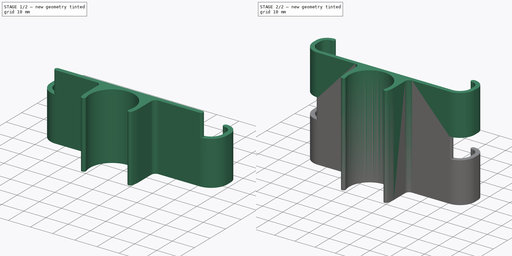
[diagram: build sequence overview — one tinted view per stage of 2, left to right]
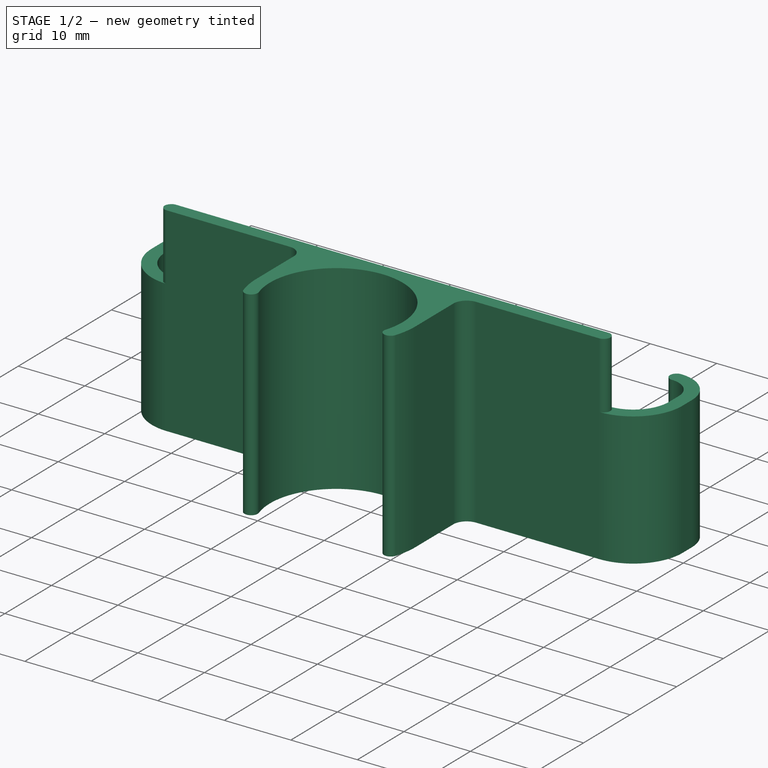
[diagram: stage 1 of 2 — iso view after this stage's code; geometry added in this stage tinted green]
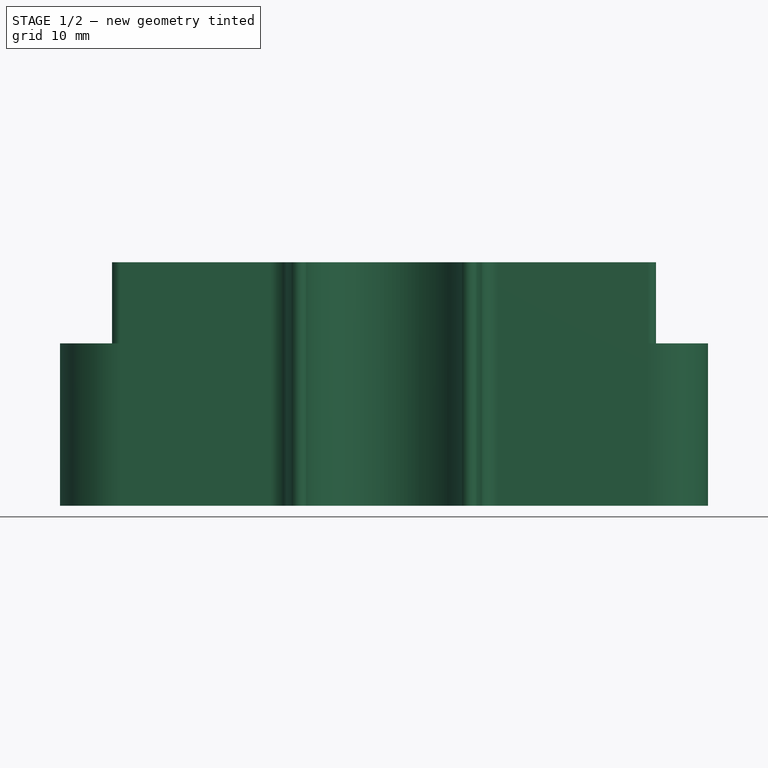
[diagram: stage 1 of 2 — front view after this stage's code; geometry added in this stage tinted green]
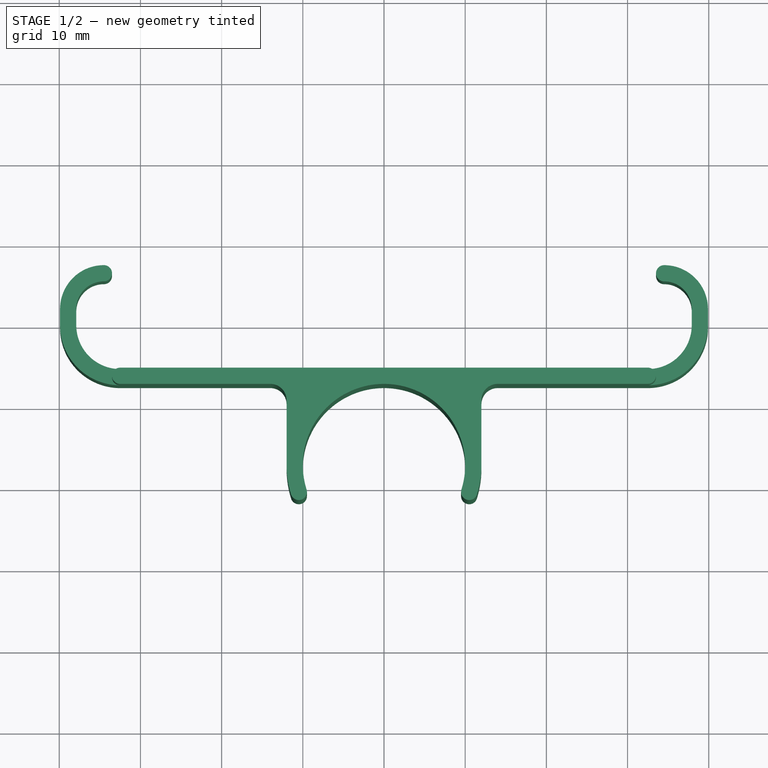
[diagram: stage 1 of 2 — top view after this stage's code; geometry added in this stage tinted green]
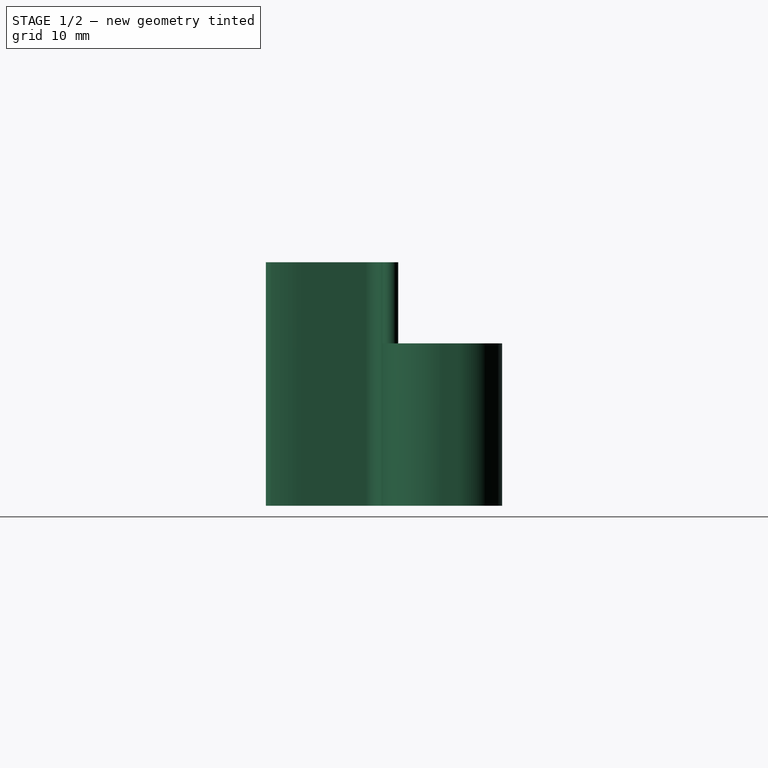
[diagram: stage 1 of 2 — right view after this stage's code; geometry added in this stage tinted green]
FCSTD DOCUMENT  (FreeCAD 0.19R24366 (Git))
Label: OPN2Caddy
License: Creative Commons Attribution-NonCommercial-ShareAlike
LicenseURL: http://creativecommons.org/licenses/by-nc-sa/4.0/
objects: Sketcher::SketchObject×4, PartDesign::Pad×3, Spreadsheet::Sheet×1, PartDesign::Body×1
note: 11 computed .brp shape members not serialized (recipe doc carries the construction recipe); baked Part::Feature solids carry a one-line shape summary decoded from their .brp

FEATURE [Sketcher::SketchObject] Sketch001  label="Template"
  FullyConstrained = true
  MapMode = 5
  Support = -> [XY_Plane]
  expr: Constraints[44] = <<Spreadsheet>>.WallThickness
  sketch-geometry (63):
    g0: ArcOfCircle CenterX=-34.5 CenterY=2 CenterZ=0 NormalX=0 NormalY=0 NormalZ=1 AngleXU=0 Radius=3.4 StartAngle=1.5708 EndAngle=3.14159
    g1: ArcOfCircle CenterX=-32.5 CenterY=1e-16 CenterZ=0 NormalX=0 NormalY=0 NormalZ=1 AngleXU=0 Radius=5.4 StartAngle=3.14159 EndAngle=4.71239
    g2: ArcOfCircle CenterX=32.5 CenterY=0 CenterZ=0 NormalX=0 NormalY=0 NormalZ=1 AngleXU=0 Radius=5.4 StartAngle=4.71239 EndAngle=6.28319
    g3: ArcOfCircle CenterX=34.5 CenterY=2 CenterZ=0 NormalX=0 NormalY=0 NormalZ=1 AngleXU=0 Radius=3.4 StartAngle=6.28319 EndAngle=7.85398
    g4: LineSegment StartX=34.5 StartY=5.4 StartZ=0 EndX=34.5 EndY=5 EndZ=0
    g5: LineSegment StartX=37.5 StartY=2 StartZ=0 EndX=37.9 EndY=2 EndZ=0
    g6: LineSegment StartX=37.5 StartY=-7.26864e-07 StartZ=0 EndX=37.9 EndY=-7.26864e-07 EndZ=0
    g7: LineSegment StartX=32.5 StartY=-5 StartZ=0 EndX=32.5 EndY=-5.4 EndZ=0
    g8: LineSegment StartX=-32.5 StartY=-5 StartZ=0 EndX=-32.5 EndY=-5.4 EndZ=0
    g9: LineSegment StartX=-37.5 StartY=-8.77959e-07 StartZ=0 EndX=-37.9 EndY=-8.77959e-07 EndZ=0
    g10: LineSegment StartX=-37.9 StartY=2 StartZ=0 EndX=-37.5 EndY=2 EndZ=0
    g11: LineSegment StartX=-34.5 StartY=5 StartZ=0 EndX=-34.5 EndY=5.4 EndZ=0
    g12: LineSegment StartX=-37.9 StartY=2 StartZ=0 EndX=-37.9 EndY=-8.77959e-07 EndZ=0
    g13: LineSegment StartX=-32.5 StartY=-5.4 StartZ=0 EndX=32.5 EndY=-5.4 EndZ=0
    g14: LineSegment StartX=37.9 StartY=-7.26864e-07 StartZ=0 EndX=37.9 EndY=2 EndZ=0
    g15: LineSegment StartX=-34.5 StartY=5.4 StartZ=0 EndX=-34.5 EndY=7.4 EndZ=0
    g16: LineSegment StartX=34.5 StartY=5.4 StartZ=0 EndX=34.5 EndY=7.4 EndZ=0
    g17: LineSegment StartX=37.9 StartY=2 StartZ=0 EndX=39.9 EndY=2 EndZ=0
    g18: LineSegment StartX=37.9 StartY=-7.26864e-07 StartZ=0 EndX=39.9 EndY=-7.26864e-07 EndZ=0
    g19: LineSegment StartX=32.5 StartY=-5.4 StartZ=0 EndX=32.5 EndY=-7.4 EndZ=0
    g20: LineSegment StartX=-32.5 StartY=-5.4 StartZ=0 EndX=-32.5 EndY=-7.4 EndZ=0
    g21: LineSegment StartX=-37.9 StartY=-8.77959e-07 StartZ=0 EndX=-39.9 EndY=-8.77959e-07 EndZ=0
    g22: LineSegment StartX=-37.9 StartY=2 StartZ=0 EndX=-39.9 EndY=2 EndZ=0
    g23: ArcOfCircle CenterX=-34.5 CenterY=2 CenterZ=0 NormalX=0 NormalY=0 NormalZ=1 AngleXU=0 Radius=5.4 StartAngle=1.5708 EndAngle=3.14159
    g24: ArcOfCircle CenterX=-32.5 CenterY=1e-16 CenterZ=0 NormalX=0 NormalY=0 NormalZ=1 AngleXU=0 Radius=7.4 StartAngle=3.14159 EndAngle=4.71239
    g25: ArcOfCircle CenterX=32.5 CenterY=0 CenterZ=0 NormalX=0 NormalY=0 NormalZ=1 AngleXU=0 Radius=7.4 StartAngle=4.71239 EndAngle=6.28319
    g26: ArcOfCircle CenterX=34.5 CenterY=2 CenterZ=0 NormalX=0 NormalY=0 NormalZ=1 AngleXU=0 Radius=5.4 StartAngle=6.28319 EndAngle=7.85398
    g27: LineSegment StartX=39.9 StartY=2 StartZ=0 EndX=39.9 EndY=-7.26864e-07 EndZ=0
    g28: LineSegment StartX=-39.9 StartY=2 StartZ=0 EndX=-39.9 EndY=-8.77959e-07 EndZ=0
    g29: ArcOfCircle CenterX=0 CenterY=-17.4 CenterZ=0 NormalX=0 NormalY=0 NormalZ=1 AngleXU=0 Radius=10 StartAngle=5.97775 EndAngle=9.73021
    g30: LineSegment StartX=0 StartY=7.4 StartZ=0 EndX=0 EndY=-17.4 EndZ=0
    g31: LineSegment StartX=-32.5 StartY=-7.4 StartZ=0 EndX=-14 EndY=-7.4 EndZ=0
    g32: LineSegment StartX=-14 StartY=-7.4 StartZ=0 EndX=14 EndY=-7.4 EndZ=0
    g33: LineSegment StartX=14 StartY=-7.4 StartZ=0 EndX=32.5 EndY=-7.4 EndZ=0
    g34: LineSegment StartX=-12 StartY=-17.4 StartZ=0 EndX=-12 EndY=-9.4 EndZ=0
    g35: LineSegment StartX=12 StartY=-17.4 StartZ=0 EndX=12 EndY=-9.4 EndZ=0
    g36: ArcOfCircle CenterX=-14 CenterY=-9.4 CenterZ=0 NormalX=0 NormalY=0 NormalZ=1 AngleXU=0 Radius=2 StartAngle=0 EndAngle=1.5708
    g37: ArcOfCircle CenterX=14 CenterY=-9.4 CenterZ=0 NormalX=0 NormalY=0 NormalZ=1 AngleXU=0 Radius=2 StartAngle=1.5708 EndAngle=3.14159
    g38: ArcOfCircle CenterX=34.5 CenterY=6.4 CenterZ=0 NormalX=0 NormalY=0 NormalZ=1 AngleXU=0 Radius=1 StartAngle=1.5708 EndAngle=4.71239
    g39: ArcOfCircle CenterX=-34.5 CenterY=6.4 CenterZ=0 NormalX=0 NormalY=0 NormalZ=1 AngleXU=0 Radius=1 StartAngle=4.71239 EndAngle=7.85398
    g40: LineSegment StartX=-9.53717 StartY=-20.4071 StartZ=0 EndX=0 EndY=-17.4 EndZ=0
    g41: LineSegment StartX=0 StartY=-17.4 StartZ=0 EndX=9.53717 EndY=-20.4071 EndZ=0
    g42: LineSegment StartX=-10 StartY=-17.4 StartZ=0 EndX=-10 EndY=-7.4 EndZ=0
    g43: LineSegment StartX=-12 StartY=-9.4 StartZ=0 EndX=-10 EndY=-9.4 EndZ=0
    g44: LineSegment StartX=-34.5 StartY=5 StartZ=0 EndX=34.5 EndY=5 EndZ=0
    g45: ArcOfCircle CenterX=34.5 CenterY=2 CenterZ=0 NormalX=0 NormalY=0 NormalZ=1 AngleXU=0 Radius=3 StartAngle=6.28319 EndAngle=7.85398
    g46: LineSegment StartX=37.5 StartY=2 StartZ=0 EndX=37.5 EndY=-7.26864e-07 EndZ=0
    g47: LineSegment StartX=-32.5 StartY=-5 StartZ=0 EndX=32.5 EndY=-5 EndZ=0
    g48: ArcOfCircle CenterX=32.5 CenterY=0 CenterZ=0 NormalX=0 NormalY=0 NormalZ=1 AngleXU=0 Radius=5 StartAngle=4.71239 EndAngle=6.28319
    g49: ArcOfCircle CenterX=-32.5 CenterY=1e-16 CenterZ=0 NormalX=0 NormalY=0 NormalZ=1 AngleXU=0 Radius=5 StartAngle=3.14159 EndAngle=4.71239
    g50: LineSegment StartX=-37.5 StartY=-8.77959e-07 StartZ=0 EndX=-37.5 EndY=2 EndZ=0
    g51: ArcOfCircle CenterX=-34.5 CenterY=2 CenterZ=0 NormalX=0 NormalY=0 NormalZ=1 AngleXU=0 Radius=3 StartAngle=1.5708 EndAngle=3.14159
    g52: LineSegment StartX=-34.5 StartY=5 StartZ=0 EndX=-37.5 EndY=5 EndZ=0
    g53: LineSegment StartX=-37.5 StartY=5 StartZ=0 EndX=-37.5 EndY=2 EndZ=0
    g54: LineSegment StartX=37.5 StartY=-7.26864e-07 StartZ=0 EndX=37.5 EndY=-5 EndZ=0
    g55: LineSegment StartX=37.5 StartY=-5 StartZ=0 EndX=32.5 EndY=-5 EndZ=0
    g56: ArcOfCircle CenterX=-32.5 CenterY=-6.4 CenterZ=0 NormalX=0 NormalY=0 NormalZ=1 AngleXU=0 Radius=1 StartAngle=1.5708 EndAngle=4.71239
    g57: ArcOfCircle CenterX=32.5 CenterY=-6.4 CenterZ=0 NormalX=0 NormalY=0 NormalZ=1 AngleXU=0 Radius=1 StartAngle=4.71239 EndAngle=7.85398
    g58: LineSegment StartX=-12 StartY=-17.4 StartZ=0 EndX=12 EndY=-17.4 EndZ=0
    g59: ArcOfCircle CenterX=0 CenterY=-17.4 CenterZ=0 NormalX=0 NormalY=0 NormalZ=1 AngleXU=0 Radius=12 StartAngle=3.14159 EndAngle=3.44703
    g60: ArcOfCircle CenterX=0 CenterY=-17.4 CenterZ=0 NormalX=0 NormalY=0 NormalZ=1 AngleXU=0 Radius=12 StartAngle=5.97775 EndAngle=6.28319
    g61: ArcOfCircle CenterX=-10.4909 CenterY=-20.7078 CenterZ=0 NormalX=0 NormalY=0 NormalZ=1 AngleXU=0 Radius=1 StartAngle=3.44703 EndAngle=6.58862
    g62: ArcOfCircle CenterX=10.4909 CenterY=-20.7078 CenterZ=0 NormalX=0 NormalY=0 NormalZ=1 AngleXU=0 Radius=1 StartAngle=2.83616 EndAngle=5.97775
  constraints (168):
    c: Coincident(g4,g3)
    c: Vertical(g4)
    c: Coincident(g5,g3)
    c: Horizontal(g5)
    c: Coincident(g6,g2)
    c: Horizontal(g6)
    c: Coincident(g7,g2)
    c: Vertical(g7)
    c: Coincident(g8,g1)
    c: Coincident(g9,g1)
    c: Coincident(g10,g0)
    c: Horizontal(g10)
    c: Coincident(g11,g0)
    c: Vertical(g11)
    c: Horizontal(g9)
    c: Equal(g5,g6)
    c: Equal(g7,g8)
    c: Equal(g9,g10)
    c: Distance(g11) = 0.4
    c: Coincident(g12,g0)
    c: Coincident(g12,g1)
    c: Coincident(g13,g1)
    c: Coincident(g13,g2)
    c: Coincident(g14,g2)
    c: Coincident(g14,g3)
    c: Coincident(g15,g0)
    c: Vertical(g15)
    c: Coincident(g16,g3)
    c: Vertical(g16)
    c: Coincident(g17,g3)
    c: Horizontal(g17)
    c: Coincident(g18,g2)
    c: Horizontal(g18)
    c: Coincident(g19,g2)
    c: Vertical(g19)
    c: Coincident(g20,g1)
    c: Vertical(g20)
    c: Coincident(g21,g1)
    c: Horizontal(g21)
    c: Coincident(g22,g0)
    c: Horizontal(g22)
    c: Equal(g22,g21)
    c: Equal(g20,g19)
    c: Equal(g18,g17)
    c: Distance(g15) = 2
    c: Coincident(g23,g0)
    c: Coincident(g23,g15)
    c: Coincident(g23,g22)
    c: Coincident(g24,g1)
    c: Coincident(g24,g21)
    c: Coincident(g24,g20)
    c: Coincident(g25,g2)
    c: Coincident(g25,g19)
    c: Coincident(g25,g18)
    c: Coincident(g26,g3)
    c: Coincident(g26,g16)
    c: Coincident(g26,g17)
    c: Coincident(g27,g26)
    c: Coincident(g27,g25)
    c: Coincident(g28,g23)
    c: Coincident(g28,g24)
    c: Coincident(g30,g29)
    c: Vertical(g30)
    c: Symmetric(g15,g16,g30)
    c: Coincident(g31,g24)
    c: Horizontal(g31)
    c: Coincident(g32,g31)
    c: Horizontal(g32)
    c: Tangent(g32,g29)
    c: Coincident(g33,g32)
    c: Coincident(g33,g25)
    c: Radius(g29) = 10
    c: Vertical(g34)
    c: Vertical(g35)
    c: Tangent(g35,g37) = 1.5708
    c: Tangent(g37,g33) = 1.5708
    c: Tangent(g36,g31) = 1.5708
    c: Tangent(g36,g34) = -1.5708
    c: Equal(g37,g36)
    c: Radius(g36) = 2
    c: PointOnObject(g38,g16)
    c: Coincident(g38,g26)
    c: Coincident(g38,g3)
    c: PointOnObject(g39,g15)
    c: Coincident(g39,g23)
    c: Coincident(g39,g0)
    c: Coincident(g40,g29)
    c: Coincident(g40,g29)
    c: Coincident(g41,g29)
    c: Coincident(g41,g29)
    c: Angle(g40,g41) = 2.53073
    c: PointOnObject(g42,g32)
    c: Vertical(g42)
    c: Coincident(g43,g34)
    c: PointOnObject(g43,g42)
    c: Horizontal(g43)
    c: Equal(g43,g20)
    c: Horizontal(g13)
    c: Coincident(g44,g11)
    c: Coincident(g44,g4)
    c: Coincident(g46,g5)
    c: Coincident(g46,g6)
    c: Tangent(g46,g45)
    c: Coincident(g45,g4)
    c: Coincident(g45,g5)
    c: Coincident(g47,g8)
    c: Coincident(g47,g7)
    c: Coincident(g48,g7)
    c: Coincident(g48,g6)
    c: Coincident(g49,g9)
    c: Coincident(g49,g8)
    c: Coincident(g50,g9)
    c: Coincident(g50,g10)
    c: Coincident(g51,g11)
    c: Coincident(g51,g10)
    c: Horizontal(g44)
    c: Horizontal(g47)
    c: Vertical(g50)
    c: Vertical(g46)
    c: Tangent(g45,g44)
    c: Equal(g7,g6)
    c: Equal(g8,g9)
    c: Equal(g10,g11)
    c: Equal(g51,g45)
    c: Equal(g48,g49)
    c: Radius(g49) = 5
    c: Radius(g51) = 3
    c: Coincident(g52,g11)
    c: Horizontal(g52)
    c: Coincident(g53,g52)
    c: Coincident(g53,g10)
    c: Vertical(g53)
    c: Tangent(g53,g51)
    c: Coincident(g54,g6)
    c: Coincident(g55,g54)
    c: Coincident(g55,g7)
    c: Tangent(g55,g48)
    c: Symmetric(g54,g52,g-1)  '__ANCHOR__'
    c: Tangent(g49,g47)
    c: DistanceY(g8,g52) = 10
    c: DistanceX(g52,g5) = 75
    c: Coincident(g2,g48)
    c: Coincident(g3,g45)
    c: Coincident(g0,g51)
    c: Coincident(g1,g49)
    c: Horizontal(g55)
    c: PointOnObject(g56,g20)
    c: Coincident(g56,g1)
    c: Coincident(g56,g24)
    c: PointOnObject(g57,g19)
    c: Coincident(g57,g2)
    c: Coincident(g57,g25)
    c: Coincident(g58,g34)
    c: Coincident(g58,g35)
    c: Horizontal(g58)
    c: Tangent(g42,g29) = 1.5708
    c: PointOnObject(g29,g58)
    c: Coincident(g59,g29)
    c: Coincident(g59,g34)
    c: Coincident(g60,g29)
    c: Coincident(g60,g35)
    c: PointOnObject(g59,g40)
    c: Symmetric(g29,g29,g-2)
    c: Coincident(g61,g59)
    c: Tangent(g61,g29) = 1.5708
    c: Symmetric(g60,g59,g-2)
    c: Coincident(g62,g29)
    c: Tangent(g60,g62) = -1.5708
FEATURE [Spreadsheet::Sheet] Spreadsheet
  cells = B2=WallThickness; C2(WallThickness)==2mm
FEATURE [Sketcher::SketchObject] Sketch
  ExternalGeometry = -> [Sketch001]
  FullyConstrained = true
  MapMode = 5
  Support = -> [XY_Plane]
  sketch-geometry (26):
    g0: ArcOfCircle CenterX=-34.5 CenterY=2 CenterZ=0 NormalX=0 NormalY=0 NormalZ=1 AngleXU=0 Radius=3.4 StartAngle=1.5708 EndAngle=3.14159
    g1: ArcOfCircle CenterX=-34.5 CenterY=6.4 CenterZ=0 NormalX=0 NormalY=0 NormalZ=1 AngleXU=0 Radius=1 StartAngle=4.7124 EndAngle=7.85397
    g2: ArcOfCircle CenterX=-34.5 CenterY=2 CenterZ=0 NormalX=0 NormalY=0 NormalZ=1 AngleXU=0 Radius=5.4 StartAngle=1.5708 EndAngle=3.14159
    g3: ArcOfCircle CenterX=-32.5 CenterY=1e-16 CenterZ=0 NormalX=0 NormalY=0 NormalZ=1 AngleXU=0 Radius=5.4 StartAngle=3.14159 EndAngle=4.71239
    g4: ArcOfCircle CenterX=-32.5 CenterY=4.8598e-12 CenterZ=0 NormalX=0 NormalY=0 NormalZ=1 AngleXU=0 Radius=7.4 StartAngle=3.14159 EndAngle=4.71239
    g5: ArcOfCircle CenterX=-14 CenterY=-9.4 CenterZ=0 NormalX=0 NormalY=0 NormalZ=1 AngleXU=0 Radius=2 StartAngle=3.696e-13 EndAngle=1.5708
    g6: ArcOfCircle CenterX=2e-16 CenterY=-17.4 CenterZ=0 NormalX=0 NormalY=0 NormalZ=1 AngleXU=0 Radius=10 StartAngle=5.97775 EndAngle=9.73021
    g7: ArcOfCircle CenterX=-10.4909 CenterY=-20.7078 CenterZ=0 NormalX=0 NormalY=0 NormalZ=1 AngleXU=0 Radius=1 StartAngle=3.44703 EndAngle=6.58862
    g8: ArcOfCircle CenterX=-7e-16 CenterY=-17.4 CenterZ=0 NormalX=0 NormalY=0 NormalZ=1 AngleXU=0 Radius=12 StartAngle=3.14159 EndAngle=3.44703
    g9: ArcOfCircle CenterX=10.4909 CenterY=-20.7078 CenterZ=0 NormalX=0 NormalY=0 NormalZ=1 AngleXU=0 Radius=1 StartAngle=2.83617 EndAngle=5.97774
    g10: ArcOfCircle CenterX=7e-16 CenterY=-17.4 CenterZ=0 NormalX=0 NormalY=0 NormalZ=1 AngleXU=0 Radius=12 StartAngle=5.97775 EndAngle=6.28319
    g11: ArcOfCircle CenterX=14 CenterY=-9.4 CenterZ=0 NormalX=0 NormalY=0 NormalZ=1 AngleXU=0 Radius=2 StartAngle=1.5708 EndAngle=3.14159
    g12: ArcOfCircle CenterX=32.5 CenterY=3e-16 CenterZ=0 NormalX=0 NormalY=0 NormalZ=1 AngleXU=0 Radius=5.4 StartAngle=4.71239 EndAngle=6.28319
    g13: ArcOfCircle CenterX=32.5 CenterY=-2e-16 CenterZ=0 NormalX=0 NormalY=0 NormalZ=1 AngleXU=0 Radius=7.4 StartAngle=4.71239 EndAngle=6.28319
    g14: ArcOfCircle CenterX=34.5 CenterY=2 CenterZ=0 NormalX=0 NormalY=0 NormalZ=1 AngleXU=0 Radius=3.4 StartAngle=6.28319 EndAngle=7.85398
    g15: ArcOfCircle CenterX=34.5 CenterY=2 CenterZ=0 NormalX=0 NormalY=0 NormalZ=1 AngleXU=0 Radius=5.4 StartAngle=6.28319 EndAngle=7.85398
    g16: ArcOfCircle CenterX=34.5 CenterY=6.4 CenterZ=0 NormalX=0 NormalY=0 NormalZ=1 AngleXU=0 Radius=1 StartAngle=1.5708 EndAngle=4.71239
    g17: LineSegment StartX=-32.5 StartY=-5.4 StartZ=0 EndX=32.5 EndY=-5.4 EndZ=0
    g18: LineSegment StartX=37.9 StartY=2 StartZ=0 EndX=37.9 EndY=-7.26864e-07 EndZ=0
    g19: LineSegment StartX=39.9 StartY=2 StartZ=0 EndX=39.9 EndY=-7.26864e-07 EndZ=0
    g20: LineSegment StartX=32.5 StartY=-7.4 StartZ=0 EndX=14 EndY=-7.4 EndZ=0
    g21: LineSegment StartX=12 StartY=-9.4 StartZ=0 EndX=12 EndY=-17.4 EndZ=0
    g22: LineSegment StartX=-12 StartY=-17.4 StartZ=0 EndX=-12 EndY=-9.4 EndZ=0
    g23: LineSegment StartX=-14 StartY=-7.4 StartZ=0 EndX=-32.5 EndY=-7.4 EndZ=0
    g24: LineSegment StartX=-39.9 StartY=-8.77959e-07 StartZ=0 EndX=-39.9 EndY=2 EndZ=0
    g25: LineSegment StartX=-37.9 StartY=-8.77959e-07 StartZ=0 EndX=-37.9 EndY=2 EndZ=0
  constraints (69):
    c: Coincident(g0,g-4)
    c: Coincident(g0,g-4)
    c: Coincident(g1,g-5)
    c: Coincident(g1,g0)
    c: Coincident(g2,g1)
    c: Coincident(g2,g-5)
    c: Coincident(g3,g-7)
    c: Coincident(g3,g-7)
    c: Coincident(g4,g-6)
    c: Coincident(g4,g-6)
    c: Coincident(g5,g-8)
    c: Coincident(g5,g-8)
    c: Coincident(g6,g-11)
    c: Coincident(g6,g-12)
    c: Coincident(g7,g-10)
    c: Coincident(g7,g6)
    c: Coincident(g8,g-9)
    c: Coincident(g8,g7)
    c: Coincident(g9,g6)
    c: Coincident(g9,g-19)
    c: Coincident(g10,g-19)
    c: Coincident(g10,g9)
    c: Coincident(g11,g-13)
    c: Coincident(g11,g-13)
    c: Coincident(g12,g-15)
    c: Coincident(g12,g-15)
    c: Coincident(g13,g-14)
    c: Coincident(g13,g-14)
    c: Coincident(g14,g-18)
    c: Coincident(g14,g-16)
    c: Coincident(g15,g-18)
    c: Coincident(g15,g-17)
    c: Coincident(g16,g14)
    c: Coincident(g16,g15)
    c: Equal(g1,g-3)
    c: Equal(g2,g-5)
    c: Equal(g0,g-4)
    c: Equal(g3,g-7)
    c: Equal(g-6,g4)
    c: Equal(g-8,g5)
    c: Equal(g-9,g8)
    c: Equal(g-10,g7)
    c: Equal(g-11,g6)
    c: Equal(g-12,g9)
    c: Equal(g-19,g10)
    c: Equal(g11,g-13)
    c: Equal(g-14,g13)
    c: Equal(g-15,g12)
    c: Equal(g14,g-16)
    c: Equal(g-17,g15)
    c: Equal(g16,g-18)
    c: Coincident(g17,g3)
    c: Coincident(g17,g12)
    c: Coincident(g18,g14)
    c: Coincident(g18,g12)
    c: Coincident(g19,g15)
    c: Coincident(g19,g13)
    c: Coincident(g20,g13)
    c: Coincident(g20,g11)
    c: Coincident(g21,g11)
    c: Coincident(g21,g10)
    c: Coincident(g22,g8)
    c: Coincident(g22,g5)
    c: Coincident(g23,g5)
    c: Coincident(g23,g4)
    c: Coincident(g24,g4)
    c: Coincident(g24,g2)
    c: Coincident(g25,g3)
    c: Coincident(g25,g0)
FEATURE [PartDesign::Pad] Pad
  Direction = (1,1,1)
  Length = 20
  Length2 = 100
  Profile = -> Sketch
  Type = 0
FEATURE [Sketcher::SketchObject] Sketch002
  AttachmentOffset = pos=(0,0,20) rot=(0,0,1;0rad)
  ExternalGeometry = -> [Sketch001]
  FullyConstrained = true
  MapMode = 5
  Placement = pos=(0,0,20) rot=(0,0,1;0rad)
  Support = -> [XY_Plane]
  expr: .AttachmentOffset.Base.z = <<Sketch>>.AttachmentOffset.Base.z + <<Pad>>.Length
  sketch-geometry (14):
    g0: ArcOfCircle CenterX=-14 CenterY=-9.4 CenterZ=0 NormalX=0 NormalY=0 NormalZ=1 AngleXU=0 Radius=2 StartAngle=3.696e-13 EndAngle=1.5708
    g1: ArcOfCircle CenterX=2e-16 CenterY=-17.4 CenterZ=0 NormalX=0 NormalY=0 NormalZ=1 AngleXU=0 Radius=10 StartAngle=5.97775 EndAngle=9.73021
    g2: ArcOfCircle CenterX=-10.4909 CenterY=-20.7078 CenterZ=0 NormalX=0 NormalY=0 NormalZ=1 AngleXU=0 Radius=1 StartAngle=3.44703 EndAngle=6.58862
    g3: ArcOfCircle CenterX=-7e-16 CenterY=-17.4 CenterZ=0 NormalX=0 NormalY=0 NormalZ=1 AngleXU=0 Radius=12 StartAngle=3.14159 EndAngle=3.44703
    g4: ArcOfCircle CenterX=10.4909 CenterY=-20.7078 CenterZ=0 NormalX=0 NormalY=0 NormalZ=1 AngleXU=0 Radius=1 StartAngle=2.83617 EndAngle=5.97774
    g5: ArcOfCircle CenterX=7e-16 CenterY=-17.4 CenterZ=0 NormalX=0 NormalY=0 NormalZ=1 AngleXU=0 Radius=12 StartAngle=5.97775 EndAngle=6.28319
    g6: ArcOfCircle CenterX=14 CenterY=-9.4 CenterZ=0 NormalX=0 NormalY=0 NormalZ=1 AngleXU=0 Radius=2 StartAngle=1.5708 EndAngle=3.14159
    g7: LineSegment StartX=-32.5 StartY=-5.4 StartZ=0 EndX=32.5 EndY=-5.4 EndZ=0
    g8: LineSegment StartX=32.5 StartY=-7.4 StartZ=0 EndX=14 EndY=-7.4 EndZ=0
    g9: LineSegment StartX=12 StartY=-9.4 StartZ=0 EndX=12 EndY=-17.4 EndZ=0
    g10: LineSegment StartX=-12 StartY=-17.4 StartZ=0 EndX=-12 EndY=-9.4 EndZ=0
    g11: LineSegment StartX=-14 StartY=-7.4 StartZ=0 EndX=-32.5 EndY=-7.4 EndZ=0
    g12: ArcOfCircle CenterX=-32.5 CenterY=-6.4 CenterZ=0 NormalX=0 NormalY=0 NormalZ=1 AngleXU=0 Radius=1 StartAngle=1.5708 EndAngle=4.71238
    g13: ArcOfCircle CenterX=32.5 CenterY=-6.4 CenterZ=0 NormalX=0 NormalY=0 NormalZ=1 AngleXU=0 Radius=1 StartAngle=4.7124 EndAngle=7.85397
  constraints (37):
    c: Coincident(g0,g-3)
    c: Coincident(g0,g-3)
    c: Coincident(g1,g-6)
    c: Coincident(g1,g-7)
    c: Coincident(g2,g-5)
    c: Coincident(g2,g1)
    c: Coincident(g3,g-4)
    c: Coincident(g3,g2)
    c: Coincident(g4,g1)
    c: Coincident(g4,g-9)
    c: Coincident(g5,g-9)
    c: Coincident(g5,g4)
    c: Coincident(g6,g-8)
    c: Coincident(g6,g-8)
    c: Equal(g-3,g0)
    c: Equal(g-4,g3)
    c: Equal(g-5,g2)
    c: Equal(g-6,g1)
    c: Equal(g-7,g4)
    c: Equal(g-9,g5)
    c: Equal(g6,g-8)
    c: Coincident(g8,g6)
    c: Coincident(g9,g6)
    c: Coincident(g9,g5)
    c: Coincident(g10,g3)
    c: Coincident(g10,g0)
    c: Coincident(g11,g0)
    c: Coincident(g7,g-11)
    c: Coincident(g8,g-11)
    c: Coincident(g7,g-10)
    c: Coincident(g11,g-10)
    c: Coincident(g12,g7)
    c: Coincident(g12,g11)
    c: Coincident(g13,g7)
    c: Coincident(g13,g8)
    c: Equal(g13,g-11)
    c: Equal(g12,g-10)
FEATURE [Sketcher::SketchObject] Sketch003
  AttachmentOffset = pos=(0,0,30) rot=(0,0,1;0rad)
  ExternalGeometry = -> [Sketch001]
  FullyConstrained = true
  MapMode = 5
  Placement = pos=(0,0,30) rot=(0,0,1;0rad)
  Support = -> [XY_Plane]
  expr: .AttachmentOffset.Base.z = <<Sketch002>>.AttachmentOffset.Base.z + <<Pad001>>.Length
  sketch-geometry (26):
    g0: ArcOfCircle CenterX=-34.5 CenterY=2 CenterZ=0 NormalX=0 NormalY=0 NormalZ=1 AngleXU=0 Radius=3.4 StartAngle=1.5708 EndAngle=3.14159
    g1: ArcOfCircle CenterX=-34.5 CenterY=6.4 CenterZ=0 NormalX=0 NormalY=0 NormalZ=1 AngleXU=0 Radius=1 StartAngle=4.7124 EndAngle=7.85397
    g2: ArcOfCircle CenterX=-34.5 CenterY=2 CenterZ=0 NormalX=0 NormalY=0 NormalZ=1 AngleXU=0 Radius=5.4 StartAngle=1.5708 EndAngle=3.14159
    g3: ArcOfCircle CenterX=-32.5 CenterY=1e-16 CenterZ=0 NormalX=0 NormalY=0 NormalZ=1 AngleXU=0 Radius=5.4 StartAngle=3.14159 EndAngle=4.71239
    g4: ArcOfCircle CenterX=-32.5 CenterY=4.8598e-12 CenterZ=0 NormalX=0 NormalY=0 NormalZ=1 AngleXU=0 Radius=7.4 StartAngle=3.14159 EndAngle=4.71239
    g5: ArcOfCircle CenterX=-14 CenterY=-9.4 CenterZ=0 NormalX=0 NormalY=0 NormalZ=1 AngleXU=0 Radius=2 StartAngle=3.696e-13 EndAngle=1.5708
    g6: ArcOfCircle CenterX=2e-16 CenterY=-17.4 CenterZ=0 NormalX=0 NormalY=0 NormalZ=1 AngleXU=0 Radius=10 StartAngle=5.97775 EndAngle=9.73021
    g7: ArcOfCircle CenterX=-10.4909 CenterY=-20.7078 CenterZ=0 NormalX=0 NormalY=0 NormalZ=1 AngleXU=0 Radius=1 StartAngle=3.44703 EndAngle=6.58862
    g8: ArcOfCircle CenterX=-7e-16 CenterY=-17.4 CenterZ=0 NormalX=0 NormalY=0 NormalZ=1 AngleXU=0 Radius=12 StartAngle=3.14159 EndAngle=3.44703
    g9: ArcOfCircle CenterX=10.4909 CenterY=-20.7078 CenterZ=0 NormalX=0 NormalY=0 NormalZ=1 AngleXU=0 Radius=1 StartAngle=2.83617 EndAngle=5.97774
    g10: ArcOfCircle CenterX=7e-16 CenterY=-17.4 CenterZ=0 NormalX=0 NormalY=0 NormalZ=1 AngleXU=0 Radius=12 StartAngle=5.97775 EndAngle=6.28319
    g11: ArcOfCircle CenterX=14 CenterY=-9.4 CenterZ=0 NormalX=0 NormalY=0 NormalZ=1 AngleXU=0 Radius=2 StartAngle=1.5708 EndAngle=3.14159
    g12: ArcOfCircle CenterX=32.5 CenterY=3e-16 CenterZ=0 NormalX=0 NormalY=0 NormalZ=1 AngleXU=0 Radius=5.4 StartAngle=4.71239 EndAngle=6.28319
    g13: ArcOfCircle CenterX=32.5 CenterY=-2e-16 CenterZ=0 NormalX=0 NormalY=0 NormalZ=1 AngleXU=0 Radius=7.4 StartAngle=4.71239 EndAngle=6.28319
    g14: ArcOfCircle CenterX=34.5 CenterY=2 CenterZ=0 NormalX=0 NormalY=0 NormalZ=1 AngleXU=0 Radius=3.4 StartAngle=6.28319 EndAngle=7.85398
    g15: ArcOfCircle CenterX=34.5 CenterY=2 CenterZ=0 NormalX=0 NormalY=0 NormalZ=1 AngleXU=0 Radius=5.4 StartAngle=6.28319 EndAngle=7.85398
    g16: ArcOfCircle CenterX=34.5 CenterY=6.4 CenterZ=0 NormalX=0 NormalY=0 NormalZ=1 AngleXU=0 Radius=1 StartAngle=1.5708 EndAngle=4.71239
    g17: LineSegment StartX=-32.5 StartY=-5.4 StartZ=0 EndX=32.5 EndY=-5.4 EndZ=0
    g18: LineSegment StartX=37.9 StartY=2 StartZ=0 EndX=37.9 EndY=-7.26864e-07 EndZ=0
    g19: LineSegment StartX=39.9 StartY=2 StartZ=0 EndX=39.9 EndY=-7.26864e-07 EndZ=0
    g20: LineSegment StartX=32.5 StartY=-7.4 StartZ=0 EndX=14 EndY=-7.4 EndZ=0
    g21: LineSegment StartX=12 StartY=-9.4 StartZ=0 EndX=12 EndY=-17.4 EndZ=0
    g22: LineSegment StartX=-12 StartY=-17.4 StartZ=0 EndX=-12 EndY=-9.4 EndZ=0
    g23: LineSegment StartX=-14 StartY=-7.4 StartZ=0 EndX=-32.5 EndY=-7.4 EndZ=0
    g24: LineSegment StartX=-39.9 StartY=-8.77959e-07 StartZ=0 EndX=-39.9 EndY=2 EndZ=0
    g25: LineSegment StartX=-37.9 StartY=-8.77959e-07 StartZ=0 EndX=-37.9 EndY=2 EndZ=0
  constraints (69):
    c: Coincident(g0,g-4)
    c: Coincident(g0,g-4)
    c: Coincident(g1,g-5)
    c: Coincident(g1,g0)
    c: Coincident(g2,g1)
    c: Coincident(g2,g-5)
    c: Coincident(g3,g-7)
    c: Coincident(g3,g-7)
    c: Coincident(g4,g-6)
    c: Coincident(g4,g-6)
    c: Coincident(g5,g-8)
    c: Coincident(g5,g-8)
    c: Coincident(g6,g-11)
    c: Coincident(g6,g-12)
    c: Coincident(g7,g-10)
    c: Coincident(g7,g6)
    c: Coincident(g8,g-9)
    c: Coincident(g8,g7)
    c: Coincident(g9,g6)
    c: Coincident(g9,g-19)
    c: Coincident(g10,g-19)
    c: Coincident(g10,g9)
    c: Coincident(g11,g-13)
    c: Coincident(g11,g-13)
    c: Coincident(g12,g-15)
    c: Coincident(g12,g-15)
    c: Coincident(g13,g-14)
    c: Coincident(g13,g-14)
    c: Coincident(g14,g-18)
    c: Coincident(g14,g-16)
    c: Coincident(g15,g-18)
    c: Coincident(g15,g-17)
    c: Coincident(g16,g14)
    c: Coincident(g16,g15)
    c: Equal(g1,g-3)
    c: Equal(g2,g-5)
    c: Equal(g0,g-4)
    c: Equal(g3,g-7)
    c: Equal(g-6,g4)
    c: Equal(g-8,g5)
    c: Equal(g-9,g8)
    c: Equal(g-10,g7)
    c: Equal(g-11,g6)
    c: Equal(g-12,g9)
    c: Equal(g-19,g10)
    c: Equal(g11,g-13)
    c: Equal(g-14,g13)
    c: Equal(g-15,g12)
    c: Equal(g14,g-16)
    c: Equal(g-17,g15)
    c: Equal(g16,g-18)
    c: Coincident(g17,g3)
    c: Coincident(g17,g12)
    c: Coincident(g18,g14)
    c: Coincident(g18,g12)
    c: Coincident(g19,g15)
    c: Coincident(g19,g13)
    c: Coincident(g20,g13)
    c: Coincident(g20,g11)
    c: Coincident(g21,g11)
    c: Coincident(g21,g10)
    c: Coincident(g22,g8)
    c: Coincident(g22,g5)
    c: Coincident(g23,g5)
    c: Coincident(g23,g4)
    c: Coincident(g24,g4)
    c: Coincident(g24,g2)
    c: Coincident(g25,g3)
    c: Coincident(g25,g0)
FEATURE [PartDesign::Pad] Pad001
  BaseFeature = -> Pad
  Direction = (1,1,1)
  Length = 10
  Length2 = 100
  Profile = -> Sketch002
  Type = 0
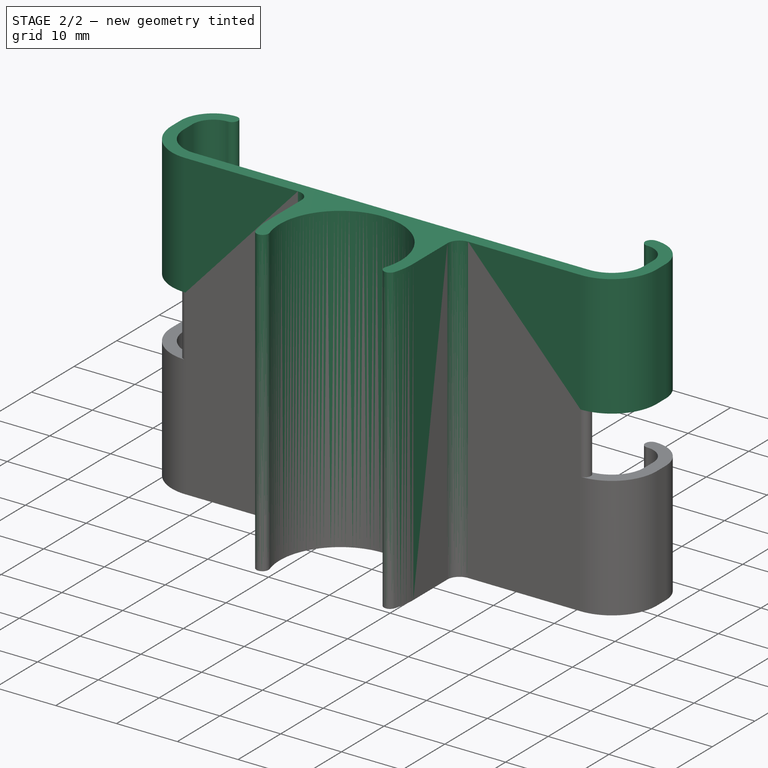
[diagram: stage 2 of 2 — iso view after this stage's code; geometry added in this stage tinted green]
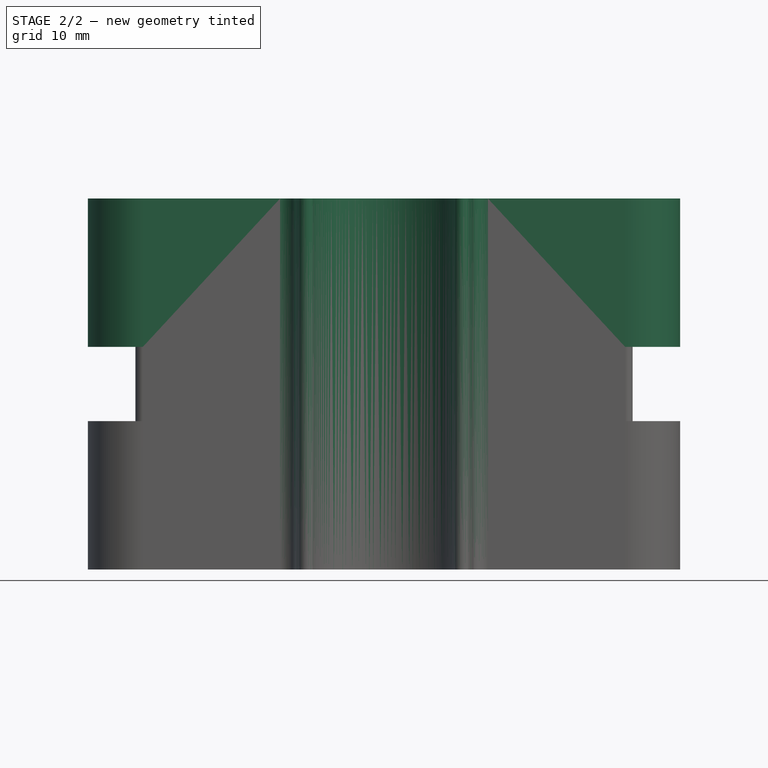
[diagram: stage 2 of 2 — front view after this stage's code; geometry added in this stage tinted green]
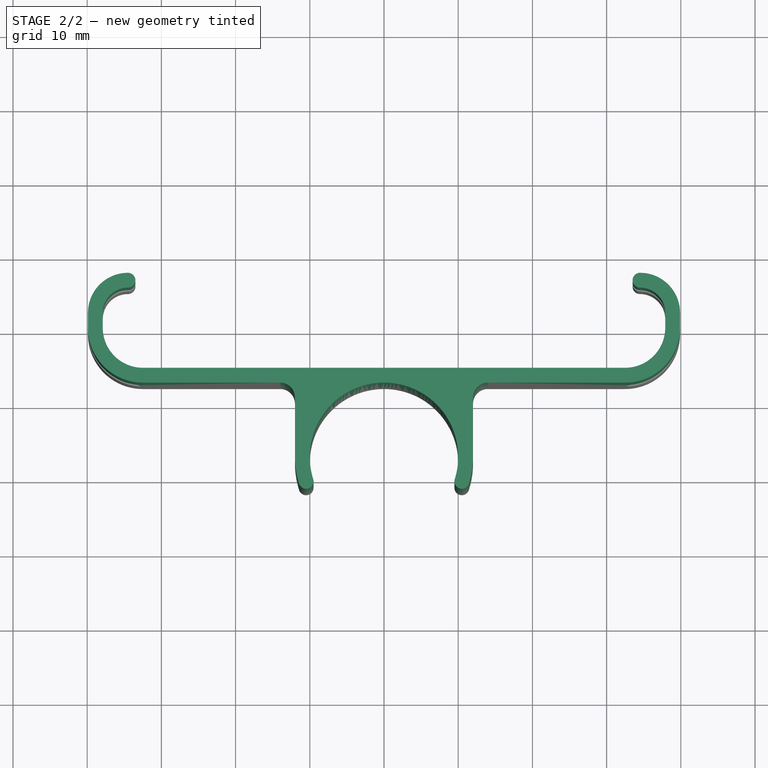
[diagram: stage 2 of 2 — top view after this stage's code; geometry added in this stage tinted green]
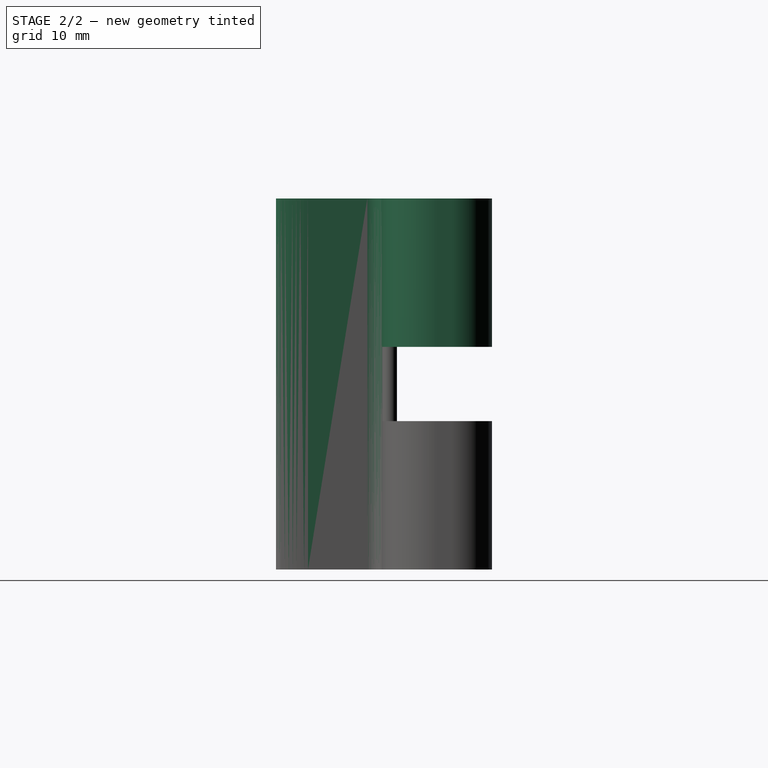
[diagram: stage 2 of 2 — right view after this stage's code; geometry added in this stage tinted green]
FEATURE [PartDesign::Pad] Pad002
  BaseFeature = -> Pad001
  Direction = (1,1,1)
  Length = 20
  Length2 = 100
  Profile = -> Sketch003
  Refine = true
  Type = 0
FEATURE [PartDesign::Body] Body
  Group = -> [Sketch001,Sketch,Pad,Sketch002,Sketch003,Pad001,Pad002]
  Origin = -> Origin
  Tip = -> Pad002
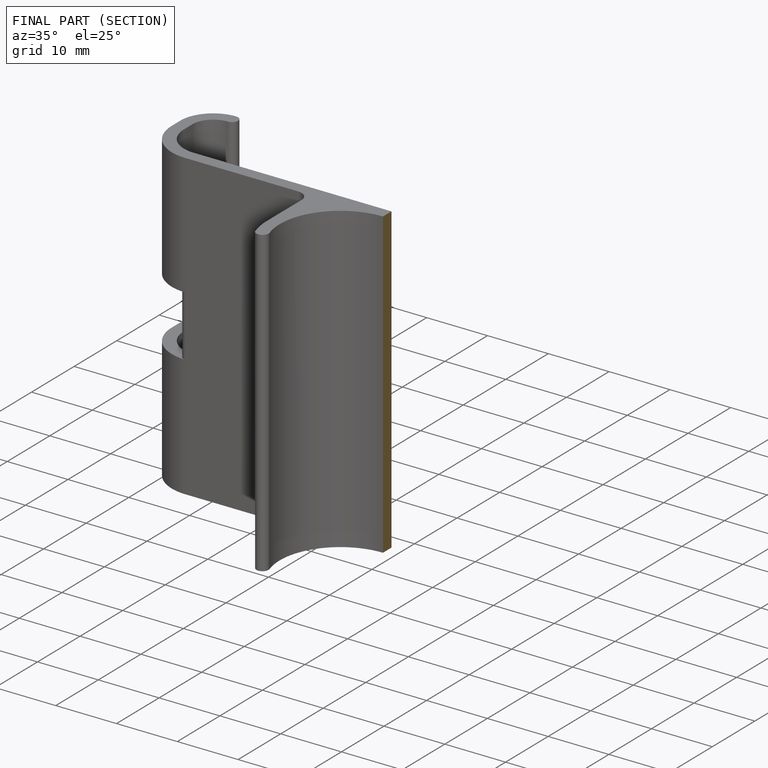
[diagram: finished part — half-section view (interior)]
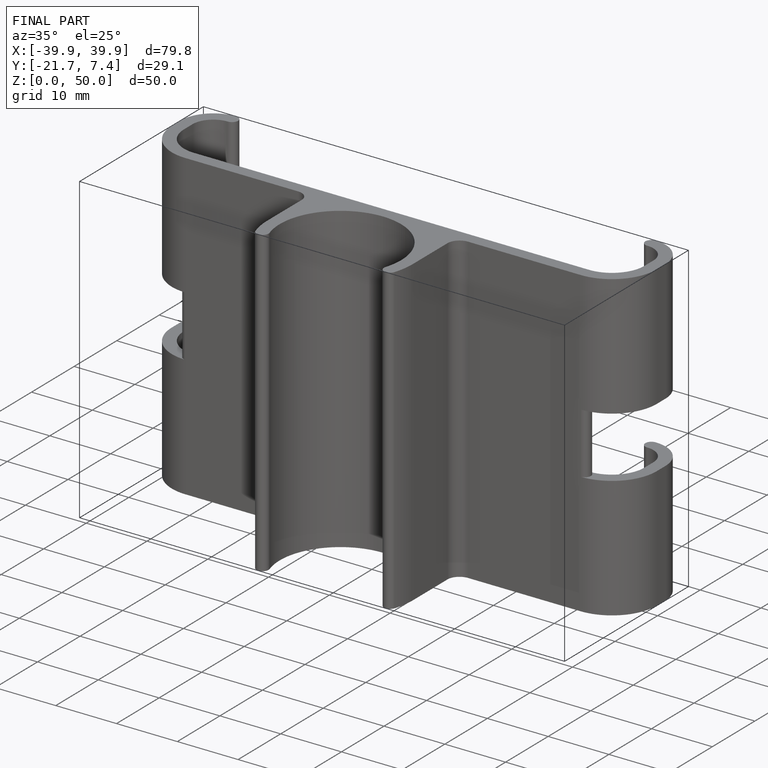
[diagram: finished part — iso view with bounding-box wireframe]
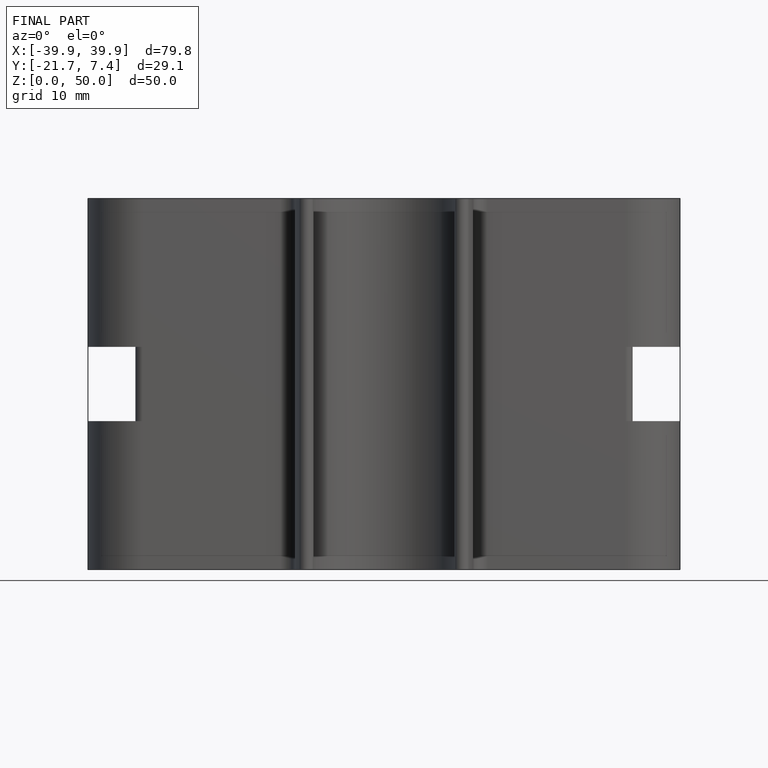
[diagram: finished part — front view with bounding-box wireframe]
